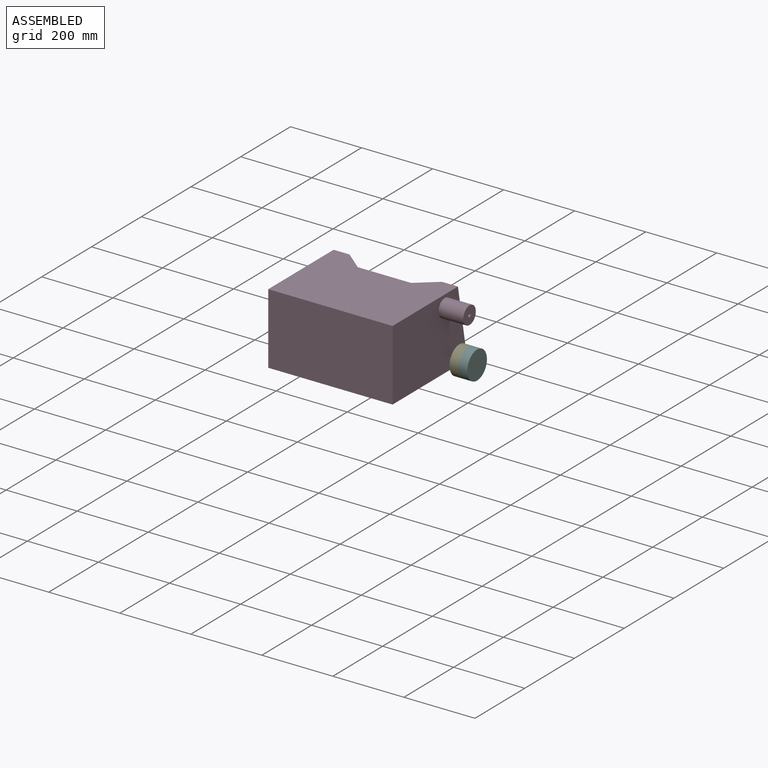
[diagram: assembled view]
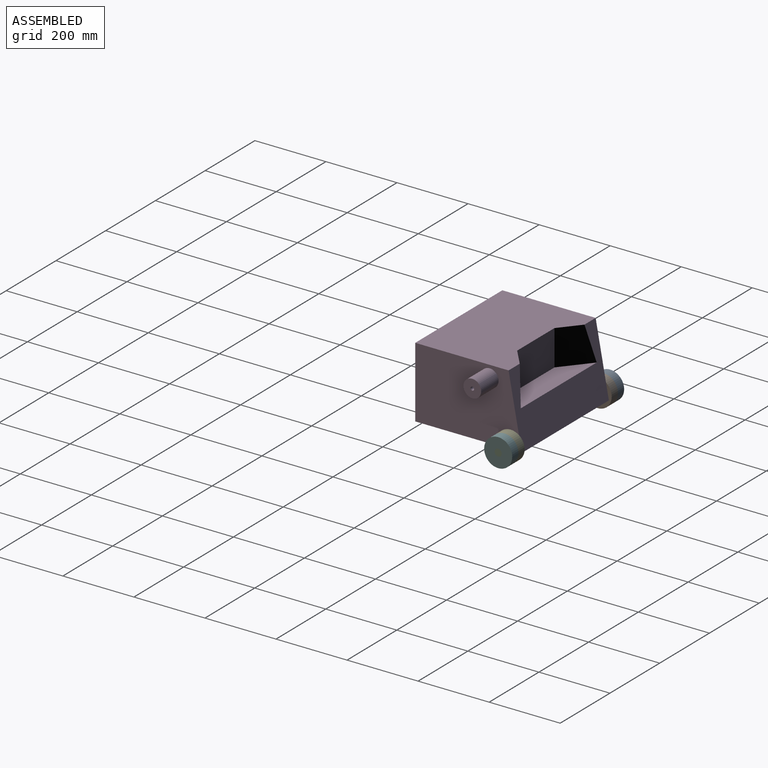
[diagram: assembled view, second angle]
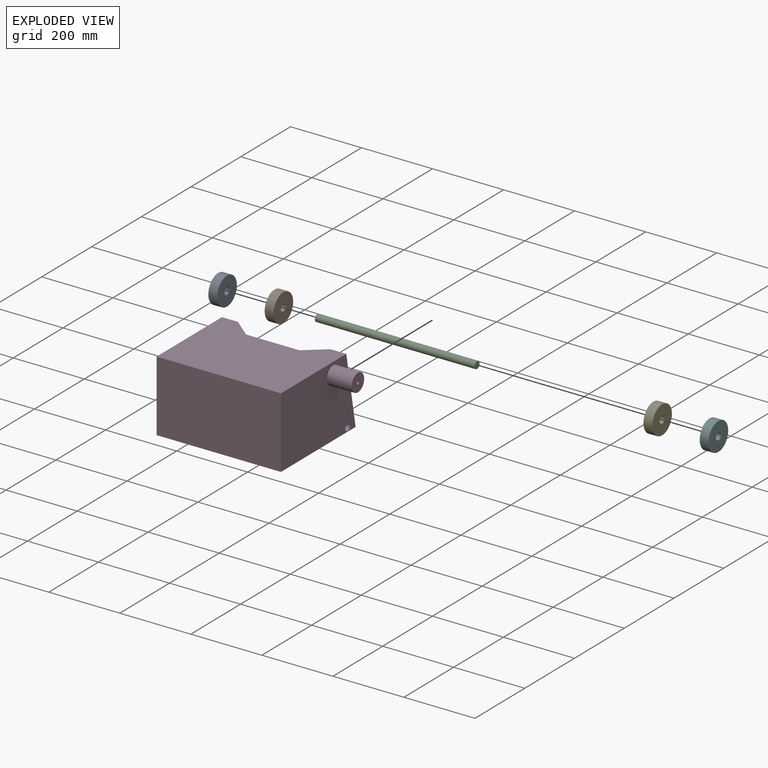
[diagram: exploded view]
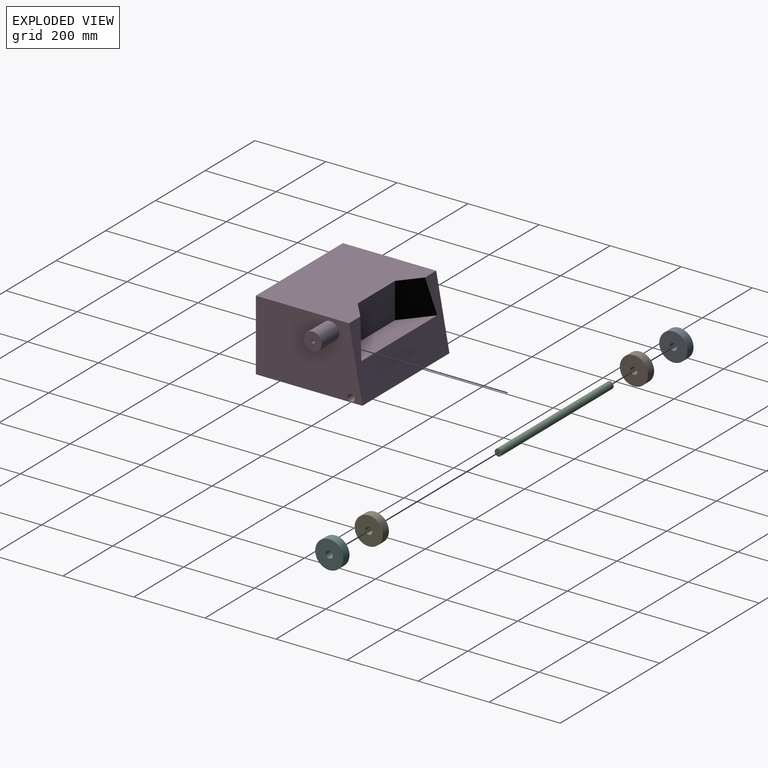
[diagram: exploded view, second angle]
ASSEMBLY  parts=6 mates=5
PART A: 4 faces, bbox 25x79x79 mm
  f0: cylinder r=39.5mm len=79mm, axis (1,0,0), area 6204.6mm2, adj f2,f3
  f1: cylinder r=10mm len=25mm, axis (1,0,0), area 1570.8mm2, adj f2,f3
  f2: plane 79x79mm, normal (-1,0,0), area 4587.5mm2, adj f0,f1
  f3: plane 79x79mm, normal (1,0,0), area 4587.5mm2, adj f0,f1
PART B: same geometry as A
PART C: 3 faces, bbox 450x20x20 mm
  f0: cylinder r=10mm len=450mm, axis (-1,0,0), area 28274.3mm2, adj f1,f2
  f1: plane 20x20mm, normal (1,0,0), area 314.2mm2, adj f0
  f2: plane 20x20mm, normal (-1,0,0), area 314.2mm2, adj f0
PART D: 15 faces, bbox 420x300x200 mm
  f0: plane 300x200mm, normal (1,0,0), area 53993.1mm2, adj f5,f6,f7,f9,f10,f12
  f1: plane 300x200mm, normal (-1,0,0), area 55956.6mm2, adj f5,f6,f7,f9,f10
  f2: plane 100x77.57mm, normal (-0.64,0.77,0), area 8630.4mm2, adj f4,f6,f8,f9
  f3: plane 100x77.57mm, normal (0.64,0.77,0), area 8630.4mm2, adj f4,f6,f8,f9
  f4: plane 305.15x64.5mm, normal (0,0,1), area 14678.8mm2, adj f2,f3,f8,f9
  f5: plane 350x200mm, normal (0,-1,0), area 70000mm2, adj f0,f1,f6,f7
  f6: plane 350x262.71mm, normal (0,0,1), area 82540.5mm2, adj f0,f1,f2,f3,f5,f8,f9
  f7: plane 350x300mm, normal (0,0,-1), area 105000mm2, adj f0,f1,f5,f9
  f8: plane 150x100mm, normal (0,1,0), area 15000mm2, adj f2,f3,f4,f6
  f9: plane 350x200mm, normal (0,0.98,0.18), area 42446.9mm2, adj f0,f1,f2,f3,f4,f6,f7
  f10: cylinder r=10mm len=350mm, axis (1,0,0), area 21991.1mm2, adj f0,f1
  f11: cylinder r=5mm len=70mm, axis (-1,0,0), area 2199.1mm2, adj f13,f14
  f12: cylinder r=25mm len=70mm, axis (-1,0,0), area 10995.6mm2, adj f0,f13
  f13: plane 50x50mm, normal (1,0,0), area 1885mm2, adj f11,f12
  f14: plane 10x10mm, normal (1,0,0), area 78.5mm2, adj f11
PART E: same geometry as A
PART F: 4 faces, bbox 25x79x79 mm
  f0: cylinder r=39.5mm len=79mm, axis (-1,0,0), area 6204.6mm2, adj f2,f3
  f1: cylinder r=10mm len=25mm, axis (-1,0,0), area 1570.8mm2, adj f2,f3
  f2: plane 79x79mm, normal (1,0,0), area 4587.5mm2, adj f0,f1
  f3: plane 79x79mm, normal (-1,0,0), area 4587.5mm2, adj f0,f1
PLACE A rot(axis=(-0.67,-0.72,-0.21),0deg) t=(108.43,-22.26,10.61)mm
PLACE B rot(axis=(0.45,-0.86,-0.25),0deg) t=(133.43,-22.26,10.61)mm
PLACE C rot(axis=(-0.67,-0.72,-0.21),0deg) t=(133.43,-22.26,10.61)mm
PLACE D rot(axis=(0.45,-0.86,-0.25),0deg) t=(133.43,-22.26,10.61)mm
PLACE E rot(axis=(-0.67,-0.72,-0.21),0deg) t=(508.43,-22.26,10.61)mm
PLACE F rot(axis=(-0.67,-0.72,-0.21),0deg) t=(158.43,-22.26,10.61)mm
MATE fastened B.f0 <-> D.f10  axis (1,0,0) through (-41.57,96.21,22.03)mm
MATE revolute B.f0 <-> A.f0  axis (-1,0,0) through (-66.57,96.21,22.03)mm
MATE revolute A.f0 <-> C.f0  axis (-1,0,0) through (-91.57,96.21,22.03)mm
MATE revolute E.f0 <-> F.f0  axis (1,0,0) through (333.43,96.21,22.03)mm
MATE revolute F.f0 <-> C.f0  axis (1,0,0) through (358.43,96.21,22.03)mm
